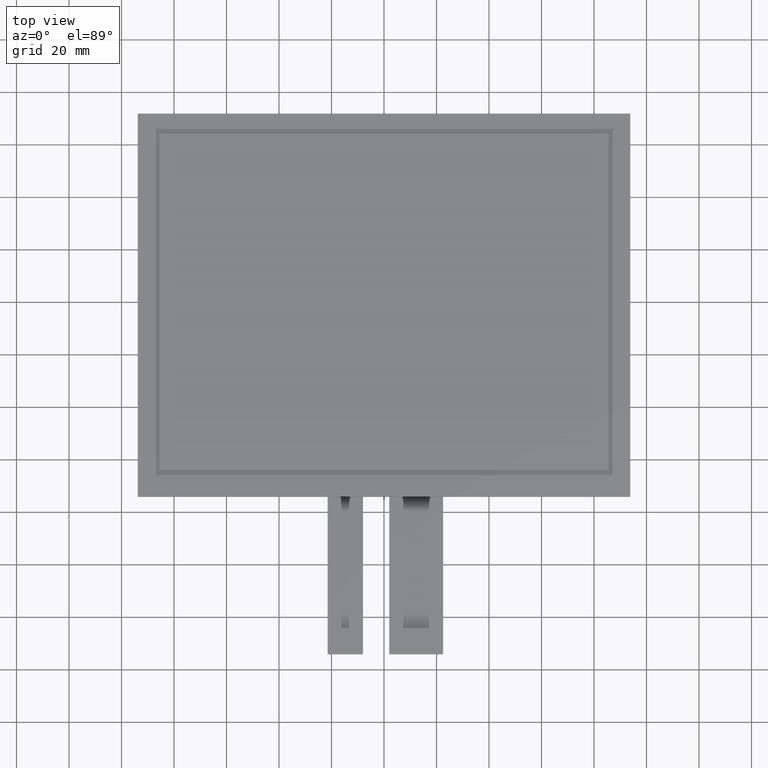
[diagram: clean part render]
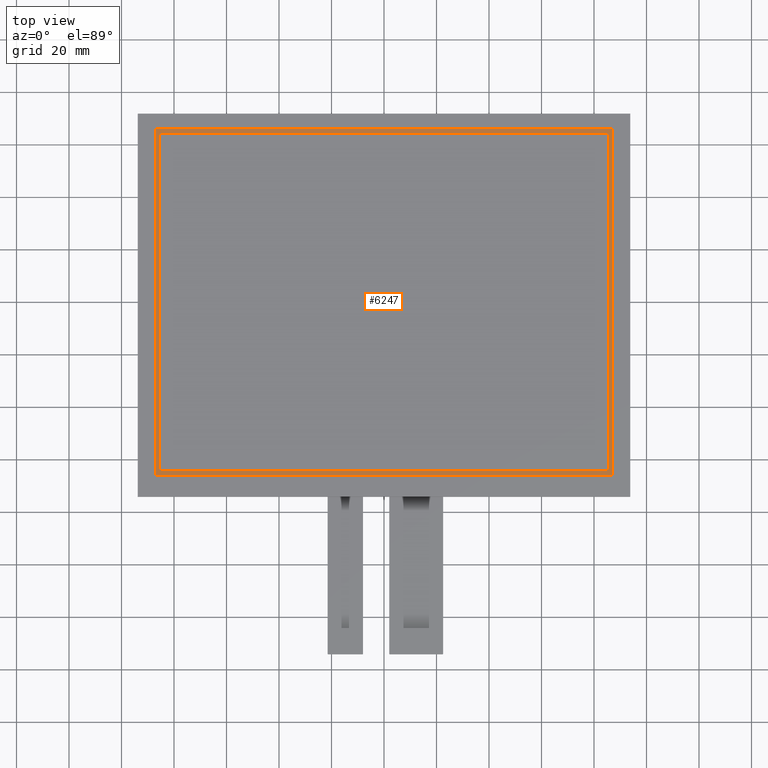
[diagram: same view with one face highlighted and labeled with its STEP entity id]
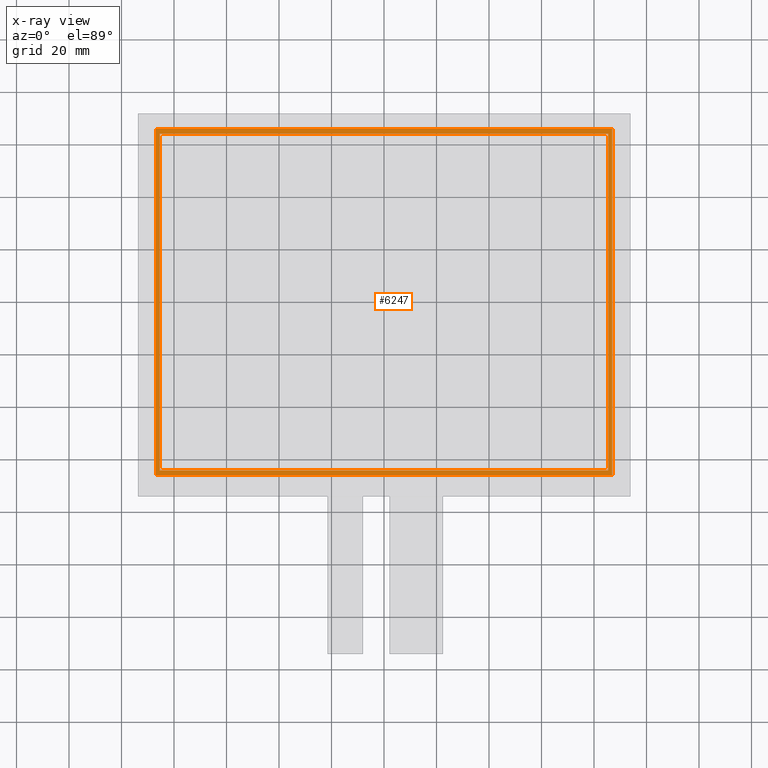
[diagram: x-ray of the same camera — body ghosted, the highlighted face saturated]
A machine part, top view. The second image highlights one B-rep face of the part: STEP entity #6247.
The next image is the same camera in x-ray: the body ghosted, the highlighted face saturated — about 0% of this face is hidden behind the body in this view.
In plain terms, the highlighted planar face has unit normal (0, 0, -1).
Its self-contained STEP definition (entity closure, byte-faithful):
#15=FACE_BOUND('',#914,.T.);
#309=PLANE('',#6577);
#611=FACE_OUTER_BOUND('',#913,.T.);
#913=EDGE_LOOP('',(#5901,#5902,#5903,#5904));
#914=EDGE_LOOP('',(#5905,#5906,#5907,#5908));
#1771=LINE('',#9801,#2651);
#1775=LINE('',#9808,#2655);
#1778=LINE('',#9814,#2658);
#1780=LINE('',#9817,#2660);
#1783=LINE('',#9825,#2663);
#1787=LINE('',#9832,#2667);
#1790=LINE('',#9838,#2670);
#1792=LINE('',#9841,#2672);
#2651=VECTOR('',#8023,10.);
#2655=VECTOR('',#8029,10.);
#2658=VECTOR('',#8034,10.);
#2660=VECTOR('',#8038,10.);
#2663=VECTOR('',#8043,10.);
#2667=VECTOR('',#8049,10.);
#2670=VECTOR('',#8054,10.);
#2672=VECTOR('',#8058,10.);
#3263=VERTEX_POINT('',#9798);
#3264=VERTEX_POINT('',#9800);
#3266=VERTEX_POINT('',#9806);
#3268=VERTEX_POINT('',#9812);
#3271=VERTEX_POINT('',#9822);
#3272=VERTEX_POINT('',#9824);
#3274=VERTEX_POINT('',#9830);
#3276=VERTEX_POINT('',#9836);
#4139=EDGE_CURVE('',#3263,#3264,#1771,.T.);
#4143=EDGE_CURVE('',#3266,#3263,#1775,.T.);
#4146=EDGE_CURVE('',#3268,#3266,#1778,.T.);
#4148=EDGE_CURVE('',#3264,#3268,#1780,.T.);
#4151=EDGE_CURVE('',#3271,#3272,#1783,.T.);
#4155=EDGE_CURVE('',#3274,#3271,#1787,.T.);
#4158=EDGE_CURVE('',#3276,#3274,#1790,.T.);
#4160=EDGE_CURVE('',#3272,#3276,#1792,.T.);
#5901=ORIENTED_EDGE('',*,*,#4160,.F.);
#5902=ORIENTED_EDGE('',*,*,#4151,.F.);
#5903=ORIENTED_EDGE('',*,*,#4155,.F.);
#5904=ORIENTED_EDGE('',*,*,#4158,.F.);
#5905=ORIENTED_EDGE('',*,*,#4148,.F.);
#5906=ORIENTED_EDGE('',*,*,#4139,.F.);
#5907=ORIENTED_EDGE('',*,*,#4143,.F.);
#5908=ORIENTED_EDGE('',*,*,#4146,.F.);
#6247=ADVANCED_FACE('',(#611,#15),#309,.F.);
#6577=AXIS2_PLACEMENT_3D('',#9842,#8059,#8060);
#8023=DIRECTION('',(1.,0.,0.));
#8029=DIRECTION('',(0.,-1.,0.));
#8034=DIRECTION('',(-1.,0.,0.));
#8038=DIRECTION('',(0.,1.,0.));
#8043=DIRECTION('',(-2.69349027960614E-16,1.,0.));
#8049=DIRECTION('',(-1.,-1.02148179378968E-16,0.));
#8054=DIRECTION('',(0.,-1.,0.));
#8058=DIRECTION('',(1.,0.,0.));
#8059=DIRECTION('center_axis',(0.,0.,-1.));
#8060=DIRECTION('ref_axis',(-1.,0.,0.));
#9798=CARTESIAN_POINT('',(-85.45,-64.1,-0.1));
#9800=CARTESIAN_POINT('',(85.45,-64.1,-0.1));
#9801=CARTESIAN_POINT('',(85.45,-64.1,-0.1));
#9806=CARTESIAN_POINT('',(-85.45,64.1,-0.1));
#9808=CARTESIAN_POINT('',(-85.45,-64.1,-0.1));
#9812=CARTESIAN_POINT('',(85.45,64.1,-0.1));
#9814=CARTESIAN_POINT('',(-85.45,64.1,-0.1));
#9817=CARTESIAN_POINT('',(85.45,64.1,-0.1));
#9822=CARTESIAN_POINT('',(-86.95,-65.95,-0.1));
#9824=CARTESIAN_POINT('',(-86.95,65.95,-0.1));
#9825=CARTESIAN_POINT('',(-86.95,65.95,-0.1));
#9830=CARTESIAN_POINT('',(86.95,-65.95,-0.1));
#9832=CARTESIAN_POINT('',(-86.95,-65.95,-0.1));
#9836=CARTESIAN_POINT('',(86.95,65.95,-0.1));
#9838=CARTESIAN_POINT('',(86.95,-65.95,-0.1));
#9841=CARTESIAN_POINT('',(86.95,65.95,-0.1));
#9842=CARTESIAN_POINT('Origin',(-1.77635683940025E-14,1.77635683940025E-14,
-0.1));